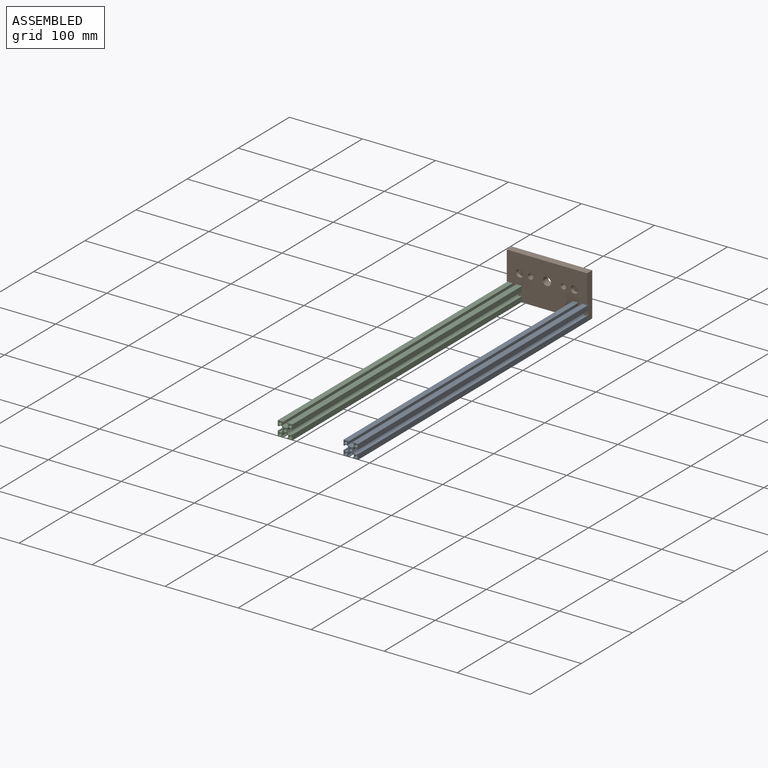
[diagram: assembled view]
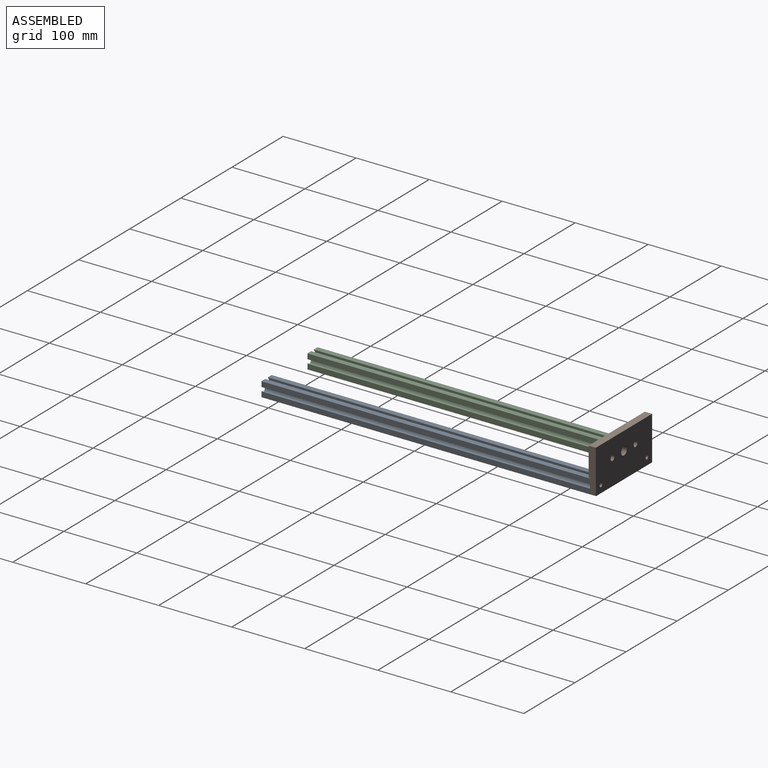
[diagram: assembled view, second angle]
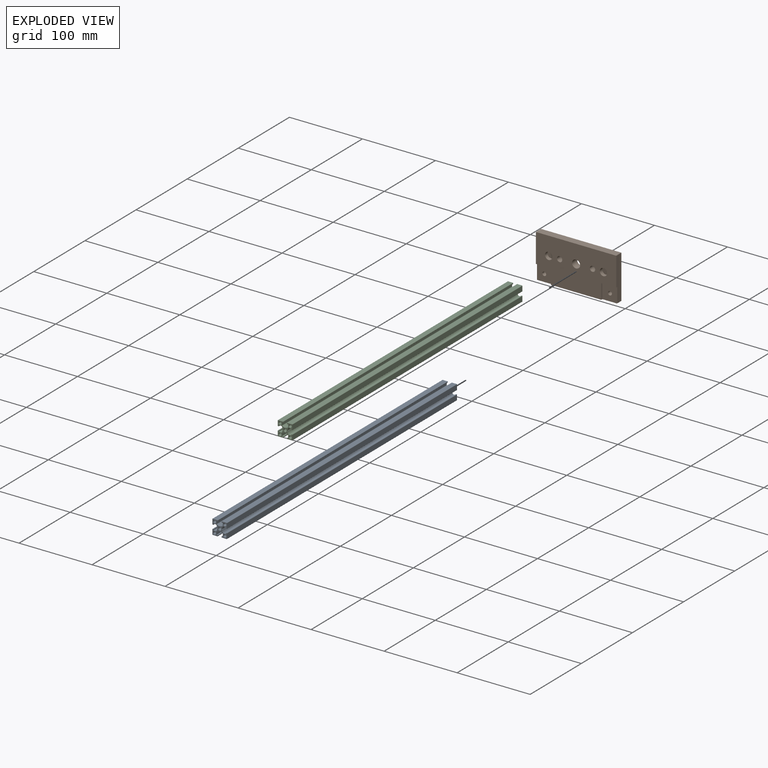
[diagram: exploded view]
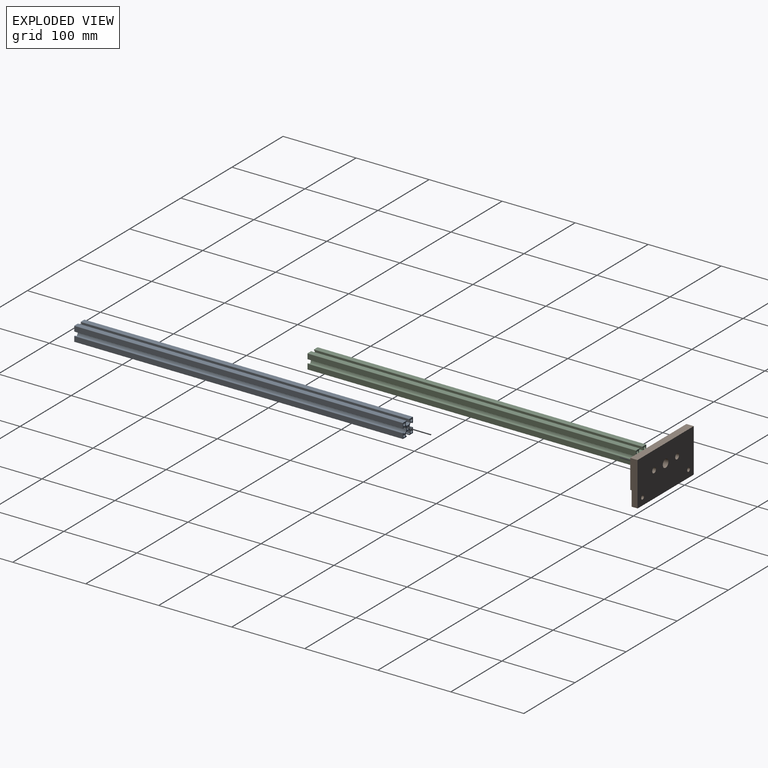
[diagram: exploded view, second angle]
ASSEMBLY  parts=3 mates=2
PART A: 91 faces, bbox 20x20x450 mm
  f0: plane 450x3.26mm, normal (-1,0,0), area 1465.8mm2, adj f1,f87,f89,f90
  f1: cylinder r=0.3mm len=450mm, axis (0,0,-1), area 121.5mm2, adj f0,f2,f89,f90
  f2: cylinder r=6.49mm len=450mm, axis (0,0,-1), area 1822mm2, adj f1,f3,f89,f90
  f3: plane 450x0.31mm, normal (-0.71,0.71,0), area 195.6mm2, adj f2,f4,f89,f90
  f4: plane 450x0.31mm, normal (0.71,0.71,0), area 195.6mm2, adj f3,f5,f89,f90
  f5: cylinder r=6.49mm len=450mm, axis (0,0,-1), area 1822mm2, adj f4,f6,f89,f90
  f6: cylinder r=0.3mm len=450mm, axis (0,0,-1), area 121.5mm2, adj f5,f7,f89,f90
  f7: plane 450x3.26mm, normal (1,0,0), area 1465.8mm2, adj f6,f8,f89,f90
  f8: cylinder r=0.3mm len=450mm, axis (0,0,-1), area 212.1mm2, adj f7,f9,f89,f90
  f9: plane 450x0.9mm, normal (0,-1,0), area 405mm2, adj f8,f10,f89,f90
  f10: cylinder r=0.3mm len=450mm, axis (0,0,-1), area 212.1mm2, adj f9,f11,f89,f90
  f11: plane 450x0.9mm, normal (1,0,0), area 405mm2, adj f10,f12,f89,f90
  f12: cylinder r=0.3mm len=450mm, axis (0,0,-1), area 212.1mm2, adj f11,f13,f89,f90
  f13: plane 450x6.75mm, normal (0,1,0), area 3037.5mm2, adj f12,f14,f89,f90
  f14: cylinder r=0.3mm len=450mm, axis (0,0,-1), area 212.1mm2, adj f13,f15,f89,f90
  f15: plane 450x6.75mm, normal (-1,0,0), area 3037.5mm2, adj f14,f16,f89,f90
  f16: cylinder r=0.3mm len=450mm, axis (0,0,-1), area 212.1mm2, adj f15,f17,f89,f90
  f17: plane 450x0.9mm, normal (0,-1,0), area 405mm2, adj f16,f18,f89,f90
  f18: cylinder r=0.3mm len=450mm, axis (0,0,-1), area 212.1mm2, adj f17,f19,f89,f90
  f19: plane 450x0.9mm, normal (1,0,0), area 405mm2, adj f18,f20,f89,f90
  f20: cylinder r=0.3mm len=450mm, axis (0,0,-1), area 212.1mm2, adj f19,f21,f89,f90
  f21: plane 450x3.26mm, normal (0,-1,0), area 1465.8mm2, adj f20,f22,f89,f90
  f22: cylinder r=0.3mm len=450mm, axis (0,0,-1), area 121.5mm2, adj f21,f23,f89,f90
  f23: cylinder r=6.49mm len=450mm, axis (0,0,-1), area 1822mm2, adj f22,f24,f89,f90
  f24: plane 450x0.31mm, normal (-0.71,-0.71,0), area 195.6mm2, adj f23,f25,f89,f90
  f25: plane 450x0.31mm, normal (-0.71,0.71,0), area 195.5mm2, adj f24,f26,f89,f90
  f26: cylinder r=6.49mm len=450mm, axis (0,0,-1), area 1822mm2, adj f25,f27,f89,f90
  f27: cylinder r=0.3mm len=450mm, axis (0,0,-1), area 121.5mm2, adj f26,f28,f89,f90
  f28: plane 450x3.26mm, normal (0,1,0), area 1465.8mm2, adj f27,f29,f89,f90
  f29: cylinder r=0.3mm len=450mm, axis (0,0,-1), area 212.1mm2, adj f28,f30,f89,f90
  f30: plane 450x0.9mm, normal (1,0,0), area 405mm2, adj f29,f31,f89,f90
  f31: cylinder r=0.3mm len=450mm, axis (0,0,-1), area 212.1mm2, adj f30,f32,f89,f90
  f32: plane 450x0.9mm, normal (0,1,0), area 405mm2, adj f31,f33,f89,f90
  f33: cylinder r=0.3mm len=450mm, axis (0,0,-1), area 212.1mm2, adj f32,f34,f89,f90
  f34: plane 450x6.75mm, normal (-1,0,0), area 3037.5mm2, adj f33,f35,f89,f90
  f35: cylinder r=0.3mm len=450mm, axis (0,0,-1), area 212.1mm2, adj f34,f36,f89,f90
  f36: plane 450x6.75mm, normal (0,-1,0), area 3037.5mm2, adj f35,f37,f89,f90
  f37: cylinder r=0.3mm len=450mm, axis (0,0,-1), area 212.1mm2, adj f36,f38,f89,f90
  f38: plane 450x0.9mm, normal (1,0,0), area 405mm2, adj f37,f39,f89,f90
  f39: cylinder r=0.3mm len=450mm, axis (0,0,-1), area 212.1mm2, adj f38,f40,f89,f90
  f40: plane 450x0.9mm, normal (0,1,0), area 405mm2, adj f39,f41,f89,f90
  f41: cylinder r=0.3mm len=450mm, axis (0,0,-1), area 212.1mm2, adj f40,f42,f89,f90
  f42: plane 450x3.26mm, normal (1,0,0), area 1465.8mm2, adj f41,f43,f89,f90
  f43: cylinder r=0.3mm len=450mm, axis (0,0,-1), area 121.5mm2, adj f42,f44,f89,f90
  f44: cylinder r=6.49mm len=450mm, axis (0,0,-1), area 1822mm2, adj f43,f45,f89,f90
  f45: plane 450x0.31mm, normal (0.71,-0.71,0), area 195.6mm2, adj f44,f46,f89,f90
  f46: plane 450x0.31mm, normal (-0.71,-0.71,0), area 195.6mm2, adj f45,f47,f89,f90
  f47: cylinder r=6.49mm len=450mm, axis (0,0,-1), area 1822mm2, adj f46,f48,f89,f90
  f48: cylinder r=0.3mm len=450mm, axis (0,0,-1), area 121.5mm2, adj f47,f49,f89,f90
  f49: plane 450x3.26mm, normal (-1,0,0), area 1465.8mm2, adj f48,f50,f89,f90
  f50: cylinder r=0.3mm len=450mm, axis (0,0,-1), area 212.1mm2, adj f49,f51,f89,f90
  f51: plane 450x0.9mm, normal (0,1,0), area 405mm2, adj f50,f52,f89,f90
  f52: cylinder r=0.3mm len=450mm, axis (0,0,-1), area 212.1mm2, adj f51,f53,f89,f90
  f53: plane 450x0.9mm, normal (-1,0,0), area 405mm2, adj f52,f54,f89,f90
  f54: cylinder r=0.3mm len=450mm, axis (0,0,-1), area 212.1mm2, adj f53,f55,f89,f90
  f55: plane 450x6.75mm, normal (0,-1,0), area 3037.5mm2, adj f54,f56,f89,f90
  f56: cylinder r=0.3mm len=450mm, axis (0,0,-1), area 212.1mm2, adj f55,f57,f89,f90
  f57: plane 450x6.75mm, normal (1,0,0), area 3037.5mm2, adj f56,f58,f89,f90
  f58: cylinder r=0.3mm len=450mm, axis (0,0,-1), area 212.1mm2, adj f57,f59,f89,f90
  f59: plane 450x0.9mm, normal (0,1,0), area 405mm2, adj f58,f60,f89,f90
  f60: cylinder r=0.3mm len=450mm, axis (0,0,-1), area 212.1mm2, adj f59,f61,f89,f90
  f61: plane 450x0.9mm, normal (-1,0,0), area 405mm2, adj f60,f62,f89,f90
  f62: cylinder r=0.3mm len=450mm, axis (0,0,-1), area 212.1mm2, adj f61,f63,f89,f90
  f63: plane 450x3.26mm, normal (0,1,0), area 1465.8mm2, adj f62,f64,f89,f90
  f64: cylinder r=0.3mm len=450mm, axis (0,0,-1), area 121.5mm2, adj f63,f65,f89,f90
  f65: cylinder r=6.49mm len=450mm, axis (0,0,-1), area 1822mm2, adj f64,f66,f89,f90
  f66: plane 450x0.31mm, normal (0.71,0.71,0), area 195.6mm2, adj f65,f67,f89,f90
  f67: plane 450x0.31mm, normal (0.71,-0.71,0), area 195.6mm2, adj f66,f68,f89,f90
  f68: cylinder r=6.49mm len=450mm, axis (0,0,-1), area 1822mm2, adj f67,f69,f89,f90
  f69: cylinder r=0.3mm len=450mm, axis (0,0,-1), area 121.5mm2, adj f68,f70,f89,f90
  f70: plane 450x3.26mm, normal (0,-1,0), area 1465.8mm2, adj f69,f71,f89,f90
  f71: cylinder r=0.3mm len=450mm, axis (0,0,-1), area 212.1mm2, adj f70,f72,f89,f90
  f72: plane 450x0.9mm, normal (-1,0,0), area 405mm2, adj f71,f73,f89,f90
  f73: cylinder r=0.3mm len=450mm, axis (0,0,-1), area 212.1mm2, adj f72,f74,f89,f90
  f74: plane 450x0.9mm, normal (0,-1,0), area 405mm2, adj f73,f75,f89,f90
  f75: cylinder r=0.3mm len=450mm, axis (0,0,-1), area 212.1mm2, adj f74,f76,f89,f90
  f76: plane 450x6.75mm, normal (1,0,0), area 3037.5mm2, adj f75,f77,f89,f90
  f77: cylinder r=0.3mm len=450mm, axis (0,0,-1), area 212.1mm2, adj f76,f78,f89,f90
  f78: plane 450x6.75mm, normal (0,1,0), area 3037.5mm2, adj f77,f79,f89,f90
  f79: cylinder r=0.3mm len=450mm, axis (0,0,-1), area 212.1mm2, adj f78,f80,f89,f90
  f80: plane 450x0.9mm, normal (-1,0,0), area 405mm2, adj f79,f81,f89,f90
  f81: cylinder r=0.3mm len=450mm, axis (0,0,-1), area 212.1mm2, adj f80,f82,f89,f90
  f82: plane 450x0.9mm, normal (0,-1,0), area 405mm2, adj f81,f87,f89,f90
  f83: cylinder r=2mm len=450mm, axis (0,0,-1), area 5654.9mm2, adj f89,f90
  f84: cylinder r=2mm len=450mm, axis (0,0,-1), area 5654.9mm2, adj f89,f90
  f85: cylinder r=2mm len=450mm, axis (0,0,-1), area 5654.9mm2, adj f89,f90
  f86: cylinder r=2mm len=450mm, axis (0,0,-1), area 5654.9mm2, adj f89,f90
  f87: cylinder r=0.3mm len=450mm, axis (0,0,-1), area 212.1mm2, adj f0,f82,f89,f90
  f88: cylinder r=2.15mm len=450mm, axis (0,0,-1), area 6079mm2, adj f89,f90
  f89: plane 20x20mm, normal (0,0,1), area 145.9mm2, adj f0,f1,f2,f3,f4,f5,f6,f7
  f90: plane 20x20mm, normal (0,0,-1), area 145.9mm2, adj f0,f1,f2,f3,f4,f5,f6,f7
PART B: 23 faces, bbox 110x60x10 mm
  f0: plane 110x60mm, normal (0,0,1), area 5423.7mm2, adj f1,f2,f5,f6,f7,f8,f9,f11
  f1: plane 109x10mm, normal (0,-1,0), area 1010mm2, adj f0,f10,f15,f16,f19,f20,f21,f22
  f2: plane 59.5x10mm, normal (1,0,0), area 555mm2, adj f0,f5,f10,f15,f17,f22
  f3: cylinder r=2.65mm len=8mm, axis (0,0,-1), area 133.2mm2, adj f10,f20
  f4: cylinder r=2.65mm len=8mm, axis (0,0,-1), area 133.2mm2, adj f10,f15
  f5: plane 110x10mm, normal (0,1,0), area 1100mm2, adj f0,f2,f6,f10
  f6: plane 59.5x10mm, normal (-1,0,0), area 555mm2, adj f0,f5,f10,f18,f20,f21
  f7: cylinder r=3.65mm len=10mm, axis (0,0,-1), area 229.3mm2, adj f0,f10
  f8: cylinder r=3.65mm len=10mm, axis (0,0,-1), area 229.3mm2, adj f0,f10
  f9: cylinder r=5.5mm len=11mm, axis (0,0,-1), area 345.6mm2, adj f0,f10
  f10: plane 110x60mm, normal (0,0,-1), area 6377mm2, adj f1,f2,f3,f4,f5,f6,f7,f8
  f11: cylinder r=5mm len=10mm, axis (0,0,1), area 157.1mm2, adj f0,f12
  f12: plane 10x10mm, normal (0,0,1), area 78.5mm2, adj f11
  f13: cylinder r=5mm len=10mm, axis (0,0,1), area 157.1mm2, adj f0,f14
  f14: plane 10x10mm, normal (0,0,1), area 78.5mm2, adj f13
  f15: plane 20.5x20.5mm, normal (0,0,1), area 398.1mm2, adj f1,f2,f4,f16,f17,f22
  f16: plane 20.5x2mm, normal (1,0,0), area 41mm2, adj f0,f1,f15,f17
  f17: plane 20.5x2mm, normal (0,-1,0), area 41mm2, adj f0,f2,f15,f16
  f18: plane 20.5x2mm, normal (0,-1,0), area 41mm2, adj f0,f6,f19,f20
  f19: plane 20.5x2mm, normal (-1,0,0), area 41mm2, adj f0,f1,f18,f20
  f20: plane 20.5x20.5mm, normal (0,0,1), area 398.1mm2, adj f1,f3,f6,f18,f19,f21
  f21: cylinder r=0.5mm len=8mm, axis (0,0,-1), area 6.3mm2, adj f1,f6,f10,f20
  f22: cylinder r=0.5mm len=8mm, axis (0,0,1), area 6.3mm2, adj f1,f2,f10,f15
PART C: same geometry as A
PLACE A rot(axis=(1,0,0),90deg) t=(83.09,36.3,-40.85)mm
PLACE B rot(axis=(1,0,0),90deg) t=(-50.86,44.3,-18.86)mm fixed
PLACE C rot(axis=(1,0,0),90deg) t=(-6.91,36.3,-40.85)mm
MATE fastened B.f3 <-> C.f88  axis (0,-1,0) through (-6.18,36.3,-40.01)mm
MATE fastened B.f4 <-> A.f88  axis (0,-1,0) through (83.82,36.3,-40.01)mm
